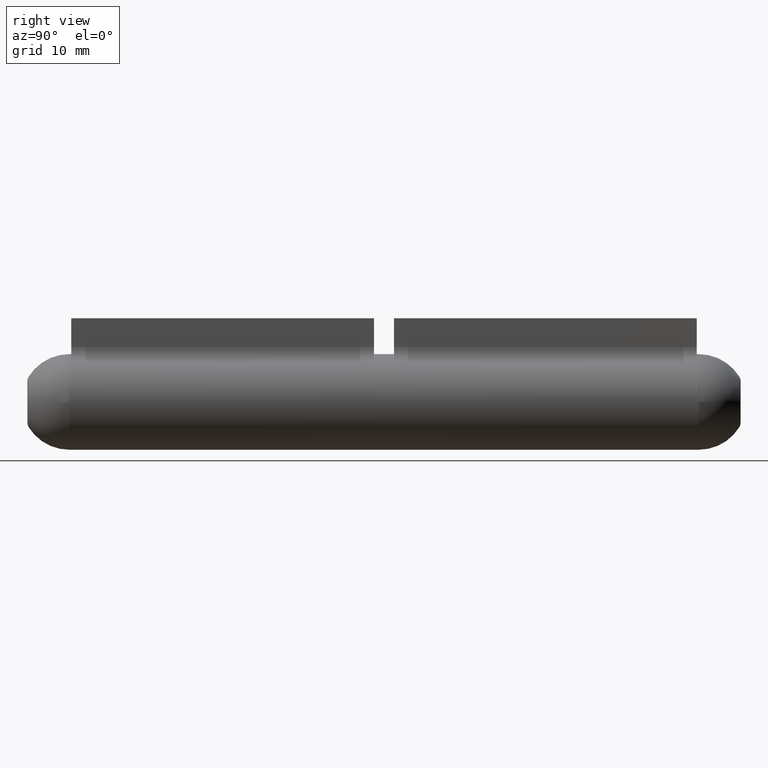
[diagram: clean part render]
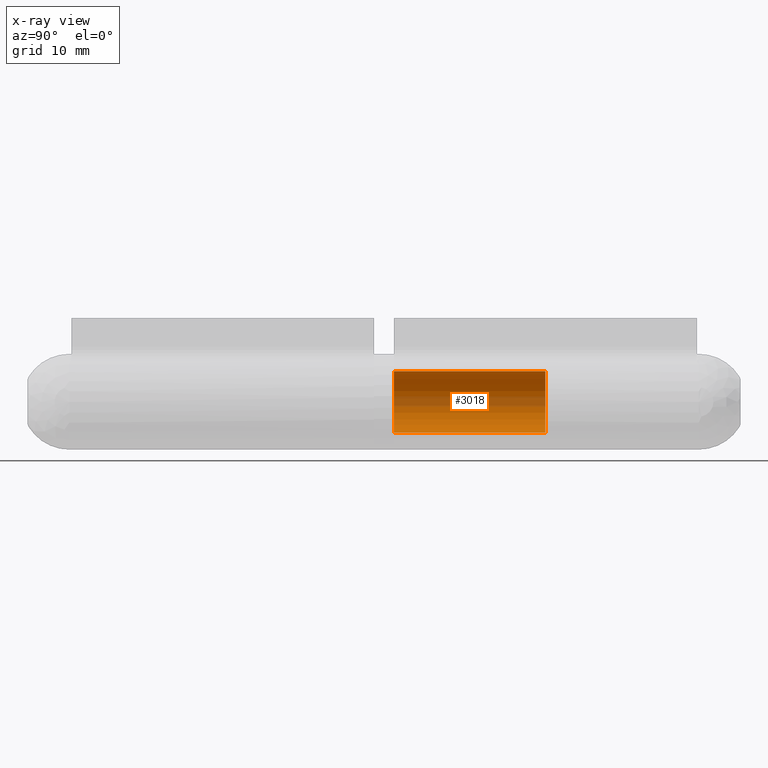
[diagram: x-ray — body ghosted, one internal face saturated and labeled with its STEP entity id]
A machine part, right view, then the same camera in x-ray: the body is ghosted and one INTERNAL B-rep face — a face not visible from any outside direction — is saturated and labeled: STEP entity #3018.
In plain terms, the highlighted cylindrical surface (edge-blend (fillet) strip) has radius 3.85 mm, axis along (-0, -1, -0).
Its self-contained STEP definition (entity closure, byte-faithful):
#190 = DIRECTION ( 'NONE',  ( 0.000000000000000000, 1.000000000000000000, 0.000000000000000000 ) ) ;
#388 = DIRECTION ( 'NONE',  ( -0.000000000000000000, -1.000000000000000000, -0.000000000000000000 ) ) ;
#1334 = AXIS2_PLACEMENT_3D ( 'NONE', #12625, #190, #6847 ) ;
#2627 = CARTESIAN_POINT ( 'NONE',  ( 0.000000000000000000, 21.50000000000000000, -3.850000000000000089 ) ) ;
#2782 = DIRECTION ( 'NONE',  ( 0.000000000000000000, 0.000000000000000000, -1.000000000000000000 ) ) ;
#2843 = FACE_OUTER_BOUND ( 'NONE', #13795, .T. ) ;
#2849 = CIRCLE ( 'NONE', #5849, 3.850000000000000089 ) ;
#3018 = ADVANCED_FACE ( 'NONE', ( #2843 ), #8108, .T. ) ;
#3421 = EDGE_CURVE ( 'NONE', #11495, #14167, #8650, .T. ) ;
#3839 = LINE ( 'NONE', #8203, #6470 ) ;
#4178 = EDGE_CURVE ( 'NONE', #11495, #4751, #2849, .T. ) ;
#4272 = EDGE_CURVE ( 'NONE', #5155, #14167, #9717, .T. ) ;
#4751 = VERTEX_POINT ( 'NONE', #10500 ) ;
#5155 = VERTEX_POINT ( 'NONE', #2627 ) ;
#5849 = AXIS2_PLACEMENT_3D ( 'NONE', #13513, #12433, #10024 ) ;
#6470 = VECTOR ( 'NONE', #8292, 1000.000000000000000 ) ;
#6847 = DIRECTION ( 'NONE',  ( 0.000000000000000000, 0.000000000000000000, 1.000000000000000000 ) ) ;
#7300 = DIRECTION ( 'NONE',  ( -0.000000000000000000, -1.000000000000000000, -0.000000000000000000 ) ) ;
#7493 = CARTESIAN_POINT ( 'NONE',  ( 0.000000000000000000, 41.49999999999999289, 0.000000000000000000 ) ) ;
#7638 = ORIENTED_EDGE ( 'NONE', *, *, #4178, .T. ) ;
#7680 = EDGE_CURVE ( 'NONE', #4751, #5155, #3839, .T. ) ;
#8108 = CYLINDRICAL_SURFACE ( 'NONE', #11272, 3.850000000000000089 ) ;
#8203 = CARTESIAN_POINT ( 'NONE',  ( 0.000000000000000000, 41.49999999999999289, -3.850000000000000089 ) ) ;
#8292 = DIRECTION ( 'NONE',  ( -0.000000000000000000, -1.000000000000000000, -0.000000000000000000 ) ) ;
#8650 = LINE ( 'NONE', #9367, #14201 ) ;
#8772 = ORIENTED_EDGE ( 'NONE', *, *, #7680, .T. ) ;
#9049 = ORIENTED_EDGE ( 'NONE', *, *, #4272, .T. ) ;
#9367 = CARTESIAN_POINT ( 'NONE',  ( 4.714890176717309515E-16, 41.49999999999999289, 3.850000000000000089 ) ) ;
#9375 = ORIENTED_EDGE ( 'NONE', *, *, #3421, .F. ) ;
#9717 = CIRCLE ( 'NONE', #1334, 3.850000000000000089 ) ;
#10024 = DIRECTION ( 'NONE',  ( 0.000000000000000000, 0.000000000000000000, 1.000000000000000000 ) ) ;
#10500 = CARTESIAN_POINT ( 'NONE',  ( 0.000000000000000000, 40.50000000000000000, -3.850000000000000089 ) ) ;
#10872 = CARTESIAN_POINT ( 'NONE',  ( 4.714890176717309515E-16, 40.50000000000000000, 3.850000000000000089 ) ) ;
#11272 = AXIS2_PLACEMENT_3D ( 'NONE', #7493, #7300, #2782 ) ;
#11495 = VERTEX_POINT ( 'NONE', #10872 ) ;
#12433 = DIRECTION ( 'NONE',  ( 0.000000000000000000, -1.000000000000000000, 0.000000000000000000 ) ) ;
#12625 = CARTESIAN_POINT ( 'NONE',  ( 0.000000000000000000, 21.50000000000000000, 0.000000000000000000 ) ) ;
#13042 = CARTESIAN_POINT ( 'NONE',  ( 4.714890176717309515E-16, 21.50000000000000000, 3.850000000000000089 ) ) ;
#13513 = CARTESIAN_POINT ( 'NONE',  ( 0.000000000000000000, 40.50000000000000000, 0.000000000000000000 ) ) ;
#13795 = EDGE_LOOP ( 'NONE', ( #9375, #7638, #8772, #9049 ) ) ;
#14167 = VERTEX_POINT ( 'NONE', #13042 ) ;
#14201 = VECTOR ( 'NONE', #388, 1000.000000000000000 ) ;